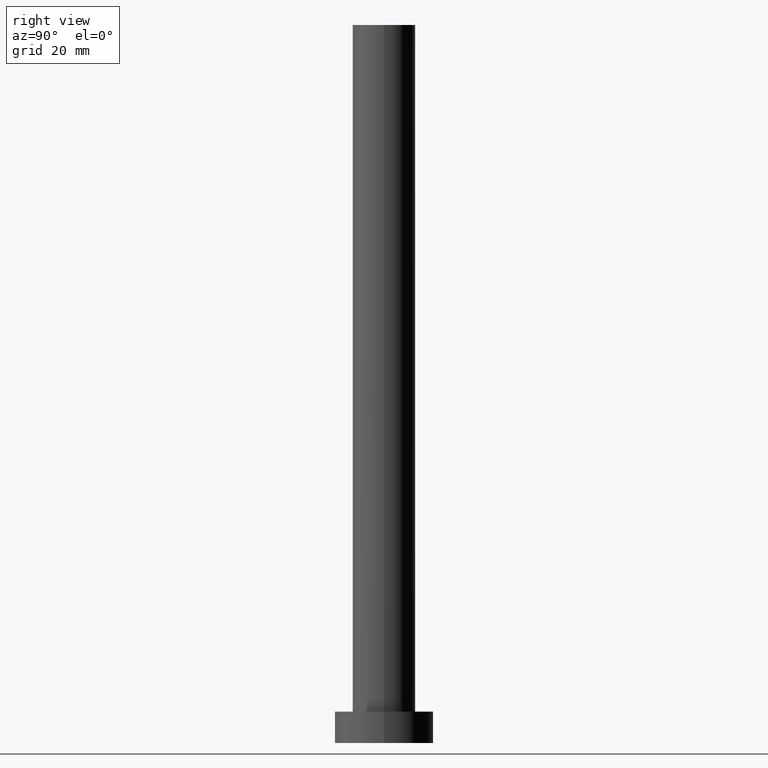
[diagram: clean part render]
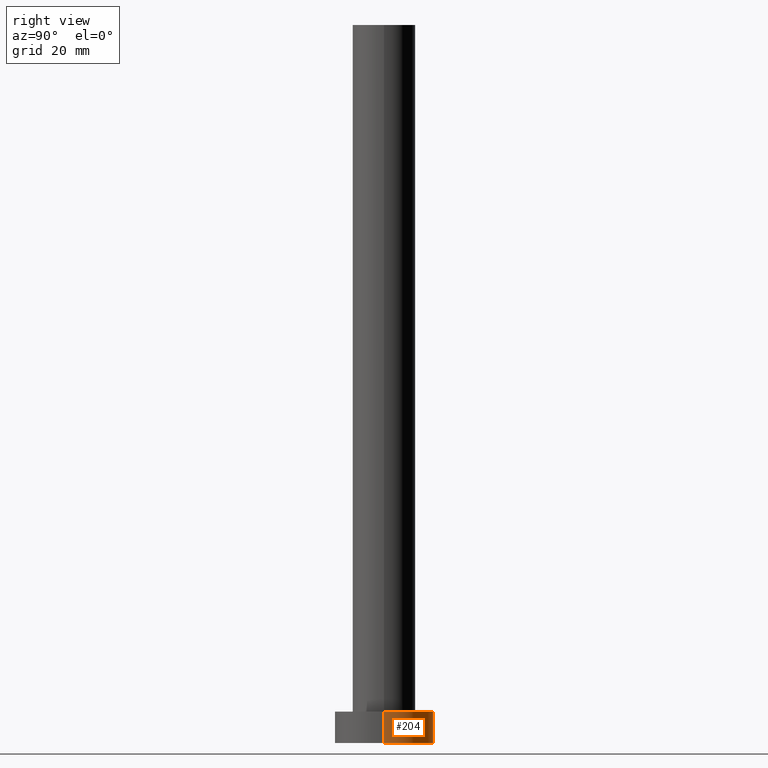
[diagram: same view with one face highlighted and labeled with its STEP entity id]
A machine part, right view. The second image highlights one B-rep face of the part: STEP entity #204.
In plain terms, the highlighted cylindrical surface (partial cylindrical patch) has radius 11 mm, axis along (-0, -0, -1).
Its self-contained STEP definition (entity closure, byte-faithful):
#9 = EDGE_CURVE ( 'NONE', #246, #69, #33, .T. ) ;
#11 = ORIENTED_EDGE ( 'NONE', *, *, #62, .F. ) ;
#19 = DIRECTION ( 'NONE',  ( -1.000000000000000000, 0.000000000000000000, 0.000000000000000000 ) ) ;
#33 = CIRCLE ( 'NONE', #167, 11.00000000000000000 ) ;
#41 = CARTESIAN_POINT ( 'NONE',  ( 0.000000000000000000, 0.000000000000000000, 0.000000000000000000 ) ) ;
#61 = ORIENTED_EDGE ( 'NONE', *, *, #180, .F. ) ;
#62 = EDGE_CURVE ( 'NONE', #83, #87, #212, .T. ) ;
#65 = ORIENTED_EDGE ( 'NONE', *, *, #243, .T. ) ;
#68 = DIRECTION ( 'NONE',  ( 0.000000000000000000, 0.000000000000000000, 1.000000000000000000 ) ) ;
#69 = VERTEX_POINT ( 'NONE', #128 ) ;
#74 = CARTESIAN_POINT ( 'NONE',  ( 0.000000000000000000, 0.000000000000000000, 7.000000000000000000 ) ) ;
#82 = VECTOR ( 'NONE', #95, 1000.000000000000000 ) ;
#83 = VERTEX_POINT ( 'NONE', #154 ) ;
#87 = VERTEX_POINT ( 'NONE', #183 ) ;
#95 = DIRECTION ( 'NONE',  ( -0.000000000000000000, -0.000000000000000000, -1.000000000000000000 ) ) ;
#97 = AXIS2_PLACEMENT_3D ( 'NONE', #193, #217, #254 ) ;
#112 = DIRECTION ( 'NONE',  ( -0.000000000000000000, -0.000000000000000000, -1.000000000000000000 ) ) ;
#122 = VECTOR ( 'NONE', #112, 1000.000000000000000 ) ;
#125 = ORIENTED_EDGE ( 'NONE', *, *, #9, .T. ) ;
#127 = EDGE_LOOP ( 'NONE', ( #11, #65, #125, #61 ) ) ;
#128 = CARTESIAN_POINT ( 'NONE',  ( -11.00000000000000000, 0.000000000000000000, 0.000000000000000000 ) ) ;
#130 = CYLINDRICAL_SURFACE ( 'NONE', #174, 11.00000000000000000 ) ;
#134 = CARTESIAN_POINT ( 'NONE',  ( -11.00000000000000000, 0.000000000000000000, 7.000000000000000000 ) ) ;
#135 = LINE ( 'NONE', #241, #82 ) ;
#147 = DIRECTION ( 'NONE',  ( 1.000000000000000000, 0.000000000000000000, 0.000000000000000000 ) ) ;
#154 = CARTESIAN_POINT ( 'NONE',  ( 11.00000000000000000, 1.347111479062088405E-15, 7.000000000000000000 ) ) ;
#167 = AXIS2_PLACEMENT_3D ( 'NONE', #41, #68, #147 ) ;
#174 = AXIS2_PLACEMENT_3D ( 'NONE', #74, #216, #19 ) ;
#180 = EDGE_CURVE ( 'NONE', #87, #69, #238, .T. ) ;
#183 = CARTESIAN_POINT ( 'NONE',  ( -11.00000000000000000, 0.000000000000000000, 7.000000000000000000 ) ) ;
#193 = CARTESIAN_POINT ( 'NONE',  ( 0.000000000000000000, 0.000000000000000000, 7.000000000000000000 ) ) ;
#204 = ADVANCED_FACE ( 'NONE', ( #252 ), #130, .T. ) ;
#212 = CIRCLE ( 'NONE', #97, 11.00000000000000000 ) ;
#216 = DIRECTION ( 'NONE',  ( -0.000000000000000000, -0.000000000000000000, -1.000000000000000000 ) ) ;
#217 = DIRECTION ( 'NONE',  ( 0.000000000000000000, 0.000000000000000000, 1.000000000000000000 ) ) ;
#223 = CARTESIAN_POINT ( 'NONE',  ( 11.00000000000000000, 1.347111479062088405E-15, 0.000000000000000000 ) ) ;
#238 = LINE ( 'NONE', #134, #122 ) ;
#241 = CARTESIAN_POINT ( 'NONE',  ( 11.00000000000000000, 1.347111479062088405E-15, 7.000000000000000000 ) ) ;
#243 = EDGE_CURVE ( 'NONE', #83, #246, #135, .T. ) ;
#246 = VERTEX_POINT ( 'NONE', #223 ) ;
#252 = FACE_OUTER_BOUND ( 'NONE', #127, .T. ) ;
#254 = DIRECTION ( 'NONE',  ( 1.000000000000000000, 0.000000000000000000, 0.000000000000000000 ) ) ;